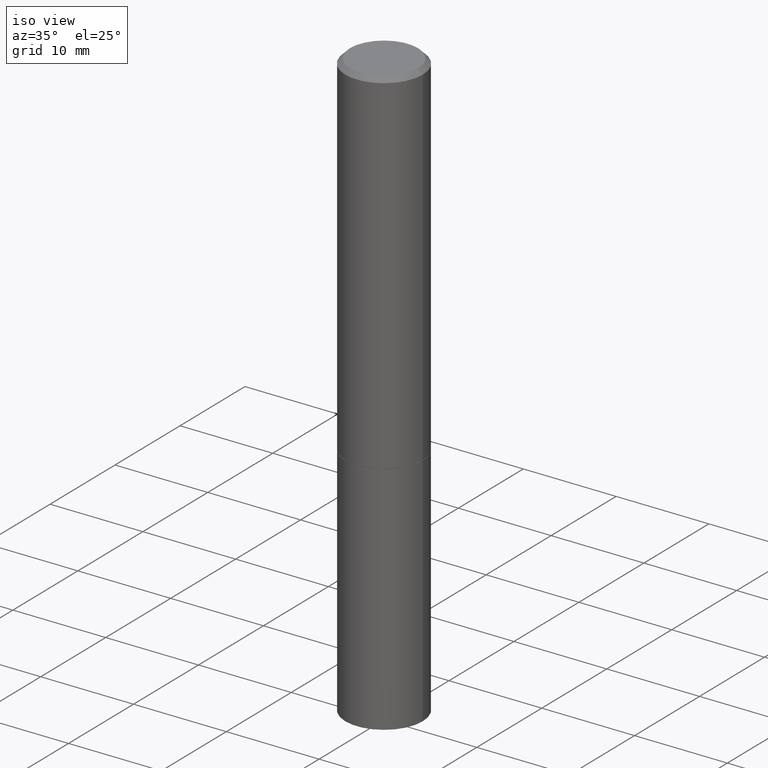
[diagram: clean part render]
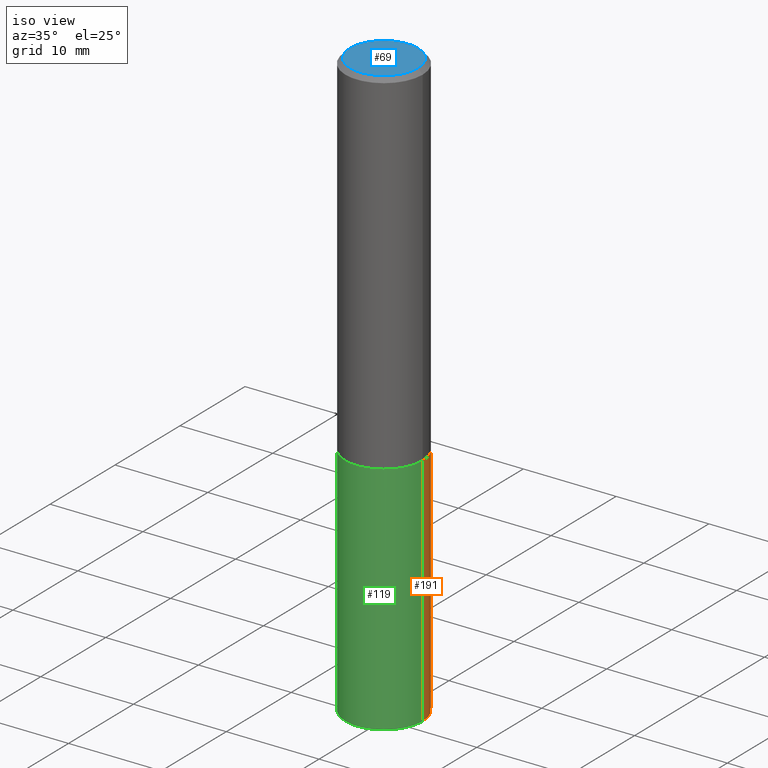
[diagram: same view with three faces highlighted in distinct colors, each labeled with its STEP entity id]
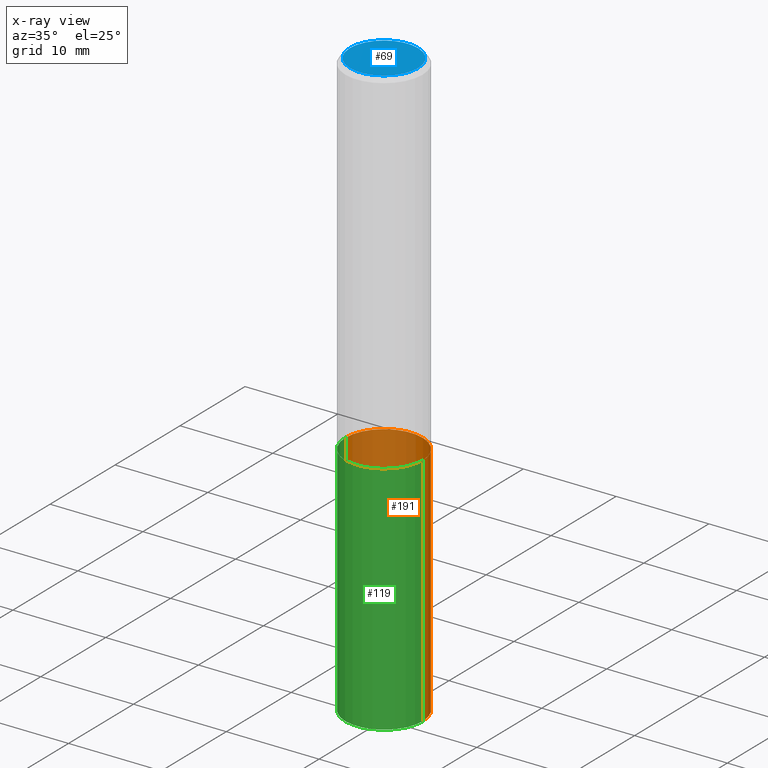
[diagram: x-ray of the same camera — body ghosted, the three highlighted faces saturated]
A machine part, iso view with three faces highlighted in distinct colors.
The next image is the same camera in x-ray (body ghosted, the three faces saturated) — at least one of them is partly hidden behind the body in this view.
Their STEP definitions:

[orange] entity #191 — the highlighted cylindrical surface (partial cylindrical patch) has radius 4.1669 mm, axis along (-0, 0, 1).
#1 = DIRECTION ( 'NONE',  ( 1.000000000000000000, -6.982962677686270655E-15, 0.000000000000000000 ) ) ;
#5 = AXIS2_PLACEMENT_3D ( 'NONE', #324, #48, #354 ) ;
#14 = VECTOR ( 'NONE', #108, 39.37007874015748143 ) ;
#21 = EDGE_CURVE ( 'NONE', #227, #219, #383, .T. ) ;
#24 = DIRECTION ( 'NONE',  ( -2.445468806185136877E-29, 3.491481338843145188E-15, 1.000000000000000000 ) ) ;
#41 = ORIENTED_EDGE ( 'NONE', *, *, #225, .F. ) ;
#48 = DIRECTION ( 'NONE',  ( -2.445468806185136597E-29, 3.491481338843145583E-15, 1.000000000000000000 ) ) ;
#54 = CYLINDRICAL_SURFACE ( 'NONE', #5, 0.1640500000000000014 ) ;
#82 = LINE ( 'NONE', #198, #378 ) ;
#108 = DIRECTION ( 'NONE',  ( -2.445468806185136877E-29, 3.491481338843145188E-15, 1.000000000000000000 ) ) ;
#110 = CIRCLE ( 'NONE', #337, 0.1640500000000000014 ) ;
#126 = VERTEX_POINT ( 'NONE', #319 ) ;
#132 = EDGE_LOOP ( 'NONE', ( #170, #332, #194, #41 ) ) ;
#143 = CARTESIAN_POINT ( 'NONE',  ( -0.1640499999999998071, -7.583148319833432491E-15, -2.500000000000000000 ) ) ;
#146 = DIRECTION ( 'NONE',  ( 1.000000000000000000, -6.982962677686264344E-15, 0.000000000000000000 ) ) ;
#170 = ORIENTED_EDGE ( 'NONE', *, *, #307, .T. ) ;
#191 = ADVANCED_FACE ( 'NONE', ( #266 ), #54, .T. ) ;
#194 = ORIENTED_EDGE ( 'NONE', *, *, #379, .F. ) ;
#198 = CARTESIAN_POINT ( 'NONE',  ( 0.1640500000000000014, -1.145555027274432057E-15, 7.999368000693231542E-30 ) ) ;
#200 = CIRCLE ( 'NONE', #350, 0.1640500000000000014 ) ;
#205 = CARTESIAN_POINT ( 'NONE',  ( 6.113672015462842613E-29, -8.728703347107864943E-15, -2.500000000000000000 ) ) ;
#219 = VERTEX_POINT ( 'NONE', #231 ) ;
#221 = VERTEX_POINT ( 'NONE', #385 ) ;
#225 = EDGE_CURVE ( 'NONE', #126, #221, #82, .T. ) ;
#227 = VERTEX_POINT ( 'NONE', #143 ) ;
#231 = CARTESIAN_POINT ( 'NONE',  ( -0.1640500000000000014, -5.817317319671846603E-15, -1.500000000000000222 ) ) ;
#266 = FACE_OUTER_BOUND ( 'NONE', #132, .T. ) ;
#275 = CARTESIAN_POINT ( 'NONE',  ( 3.668203209277704895E-29, -5.237222008264718177E-15, -1.500000000000000222 ) ) ;
#307 = EDGE_CURVE ( 'NONE', #126, #227, #200, .T. ) ;
#310 = DIRECTION ( 'NONE',  ( -2.445468806185136597E-29, 3.491481338843145583E-15, 1.000000000000000000 ) ) ;
#319 = CARTESIAN_POINT ( 'NONE',  ( 0.1640499999999998071, -9.854168043642283706E-15, -2.500000000000000000 ) ) ;
#324 = CARTESIAN_POINT ( 'NONE',  ( 0.000000000000000000, 0.000000000000000000, 0.000000000000000000 ) ) ;
#332 = ORIENTED_EDGE ( 'NONE', *, *, #21, .T. ) ;
#337 = AXIS2_PLACEMENT_3D ( 'NONE', #275, #363, #1 ) ;
#349 = CARTESIAN_POINT ( 'NONE',  ( -0.1640500000000000014, 1.165645358014444365E-15, -8.069513015563172164E-30 ) ) ;
#350 = AXIS2_PLACEMENT_3D ( 'NONE', #205, #310, #146 ) ;
#354 = DIRECTION ( 'NONE',  ( 1.000000000000000000, -6.982962677686266711E-15, 4.876176775795935232E-29 ) ) ;
#363 = DIRECTION ( 'NONE',  ( -2.445468806185136597E-29, 3.491481338843145583E-15, 1.000000000000000000 ) ) ;
#378 = VECTOR ( 'NONE', #24, 39.37007874015748143 ) ;
#379 = EDGE_CURVE ( 'NONE', #221, #219, #110, .T. ) ;
#383 = LINE ( 'NONE', #349, #14 ) ;
#385 = CARTESIAN_POINT ( 'NONE',  ( 0.1640500000000000014, -6.382777035539151417E-15, -1.500000000000000222 ) ) ;

[blue] entity #69 — the highlighted planar face has unit normal (0, -0, -1).
#11 = EDGE_LOOP ( 'NONE', ( #52, #253 ) ) ;
#29 = DIRECTION ( 'NONE',  ( 1.000000000000000000, -6.982962677686266711E-15, 4.876176775795935232E-29 ) ) ;
#31 = DIRECTION ( 'NONE',  ( -2.445468806185136597E-29, 3.491481338843145583E-15, 1.000000000000000000 ) ) ;
#33 = CARTESIAN_POINT ( 'NONE',  ( 0.000000000000000000, 0.000000000000000000, 0.000000000000000000 ) ) ;
#37 = CIRCLE ( 'NONE', #203, 0.1440499999999998726 ) ;
#52 = ORIENTED_EDGE ( 'NONE', *, *, #106, .T. ) ;
#53 = DIRECTION ( 'NONE',  ( 2.438088387897960049E-29, -3.491481338843145188E-15, -1.000000000000000000 ) ) ;
#69 = ADVANCED_FACE ( 'NONE', ( #197 ), #352, .F. ) ;
#76 = DIRECTION ( 'NONE',  ( -1.000000000000000000, 6.982962677686265922E-15, -4.876176775795935793E-29 ) ) ;
#77 = VERTEX_POINT ( 'NONE', #160 ) ;
#106 = EDGE_CURVE ( 'NONE', #77, #372, #211, .T. ) ;
#149 = CARTESIAN_POINT ( 'NONE',  ( 0.1440499999999998726, -1.091774529945134884E-15, 7.334608212837371229E-30 ) ) ;
#160 = CARTESIAN_POINT ( 'NONE',  ( -0.1440499999999998726, 1.040810587109136913E-15, -7.156668557471614476E-30 ) ) ;
#176 = DIRECTION ( 'NONE',  ( -2.445468806185136597E-29, 3.491481338843145583E-15, 1.000000000000000000 ) ) ;
#197 = FACE_OUTER_BOUND ( 'NONE', #11, .T. ) ;
#202 = DIRECTION ( 'NONE',  ( 1.000000000000000000, -6.982962677686266711E-15, 4.876176775795935232E-29 ) ) ;
#203 = AXIS2_PLACEMENT_3D ( 'NONE', #33, #31, #202 ) ;
#211 = CIRCLE ( 'NONE', #315, 0.1440499999999998726 ) ;
#253 = ORIENTED_EDGE ( 'NONE', *, *, #261, .T. ) ;
#261 = EDGE_CURVE ( 'NONE', #372, #77, #37, .T. ) ;
#297 = CARTESIAN_POINT ( 'NONE',  ( 1.005895773720705658E-15, 0.1440499999999998726, -5.029478868603546039E-16 ) ) ;
#315 = AXIS2_PLACEMENT_3D ( 'NONE', #361, #176, #29 ) ;
#327 = AXIS2_PLACEMENT_3D ( 'NONE', #297, #53, #76 ) ;
#352 = PLANE ( 'NONE',  #327 ) ;
#361 = CARTESIAN_POINT ( 'NONE',  ( 0.000000000000000000, 0.000000000000000000, 0.000000000000000000 ) ) ;
#372 = VERTEX_POINT ( 'NONE', #149 ) ;

[green] entity #119 — the highlighted cylindrical surface (partial cylindrical patch) has radius 4.1669 mm, axis along (-0, 0, 1).
#9 = CIRCLE ( 'NONE', #366, 0.1640500000000000014 ) ;
#12 = DIRECTION ( 'NONE',  ( -2.445468806185136597E-29, 3.491481338843145583E-15, 1.000000000000000000 ) ) ;
#14 = VECTOR ( 'NONE', #108, 39.37007874015748143 ) ;
#15 = EDGE_LOOP ( 'NONE', ( #262, #74, #353, #216 ) ) ;
#21 = EDGE_CURVE ( 'NONE', #227, #219, #383, .T. ) ;
#24 = DIRECTION ( 'NONE',  ( -2.445468806185136877E-29, 3.491481338843145188E-15, 1.000000000000000000 ) ) ;
#74 = ORIENTED_EDGE ( 'NONE', *, *, #151, .T. ) ;
#82 = LINE ( 'NONE', #198, #378 ) ;
#84 = EDGE_CURVE ( 'NONE', #219, #221, #9, .T. ) ;
#89 = AXIS2_PLACEMENT_3D ( 'NONE', #292, #12, #130 ) ;
#99 = AXIS2_PLACEMENT_3D ( 'NONE', #331, #118, #173 ) ;
#108 = DIRECTION ( 'NONE',  ( -2.445468806185136877E-29, 3.491481338843145188E-15, 1.000000000000000000 ) ) ;
#118 = DIRECTION ( 'NONE',  ( -2.445468806185136597E-29, 3.491481338843145583E-15, 1.000000000000000000 ) ) ;
#119 = ADVANCED_FACE ( 'NONE', ( #308 ), #179, .T. ) ;
#126 = VERTEX_POINT ( 'NONE', #319 ) ;
#130 = DIRECTION ( 'NONE',  ( 1.000000000000000000, -6.982962677686264344E-15, 0.000000000000000000 ) ) ;
#134 = DIRECTION ( 'NONE',  ( -2.445468806185136597E-29, 3.491481338843145583E-15, 1.000000000000000000 ) ) ;
#143 = CARTESIAN_POINT ( 'NONE',  ( -0.1640499999999998071, -7.583148319833432491E-15, -2.500000000000000000 ) ) ;
#151 = EDGE_CURVE ( 'NONE', #227, #126, #283, .T. ) ;
#173 = DIRECTION ( 'NONE',  ( 1.000000000000000000, -6.982962677686266711E-15, 4.876176775795935232E-29 ) ) ;
#179 = CYLINDRICAL_SURFACE ( 'NONE', #99, 0.1640500000000000014 ) ;
#198 = CARTESIAN_POINT ( 'NONE',  ( 0.1640500000000000014, -1.145555027274432057E-15, 7.999368000693231542E-30 ) ) ;
#216 = ORIENTED_EDGE ( 'NONE', *, *, #84, .F. ) ;
#219 = VERTEX_POINT ( 'NONE', #231 ) ;
#221 = VERTEX_POINT ( 'NONE', #385 ) ;
#225 = EDGE_CURVE ( 'NONE', #126, #221, #82, .T. ) ;
#227 = VERTEX_POINT ( 'NONE', #143 ) ;
#231 = CARTESIAN_POINT ( 'NONE',  ( -0.1640500000000000014, -5.817317319671846603E-15, -1.500000000000000222 ) ) ;
#262 = ORIENTED_EDGE ( 'NONE', *, *, #21, .F. ) ;
#283 = CIRCLE ( 'NONE', #89, 0.1640500000000000014 ) ;
#292 = CARTESIAN_POINT ( 'NONE',  ( 6.113672015462842613E-29, -8.728703347107864943E-15, -2.500000000000000000 ) ) ;
#295 = DIRECTION ( 'NONE',  ( 1.000000000000000000, -6.982962677686270655E-15, 0.000000000000000000 ) ) ;
#308 = FACE_OUTER_BOUND ( 'NONE', #15, .T. ) ;
#319 = CARTESIAN_POINT ( 'NONE',  ( 0.1640499999999998071, -9.854168043642283706E-15, -2.500000000000000000 ) ) ;
#322 = CARTESIAN_POINT ( 'NONE',  ( 3.668203209277704895E-29, -5.237222008264718177E-15, -1.500000000000000222 ) ) ;
#331 = CARTESIAN_POINT ( 'NONE',  ( 0.000000000000000000, 0.000000000000000000, 0.000000000000000000 ) ) ;
#349 = CARTESIAN_POINT ( 'NONE',  ( -0.1640500000000000014, 1.165645358014444365E-15, -8.069513015563172164E-30 ) ) ;
#353 = ORIENTED_EDGE ( 'NONE', *, *, #225, .T. ) ;
#366 = AXIS2_PLACEMENT_3D ( 'NONE', #322, #134, #295 ) ;
#378 = VECTOR ( 'NONE', #24, 39.37007874015748143 ) ;
#383 = LINE ( 'NONE', #349, #14 ) ;
#385 = CARTESIAN_POINT ( 'NONE',  ( 0.1640500000000000014, -6.382777035539151417E-15, -1.500000000000000222 ) ) ;